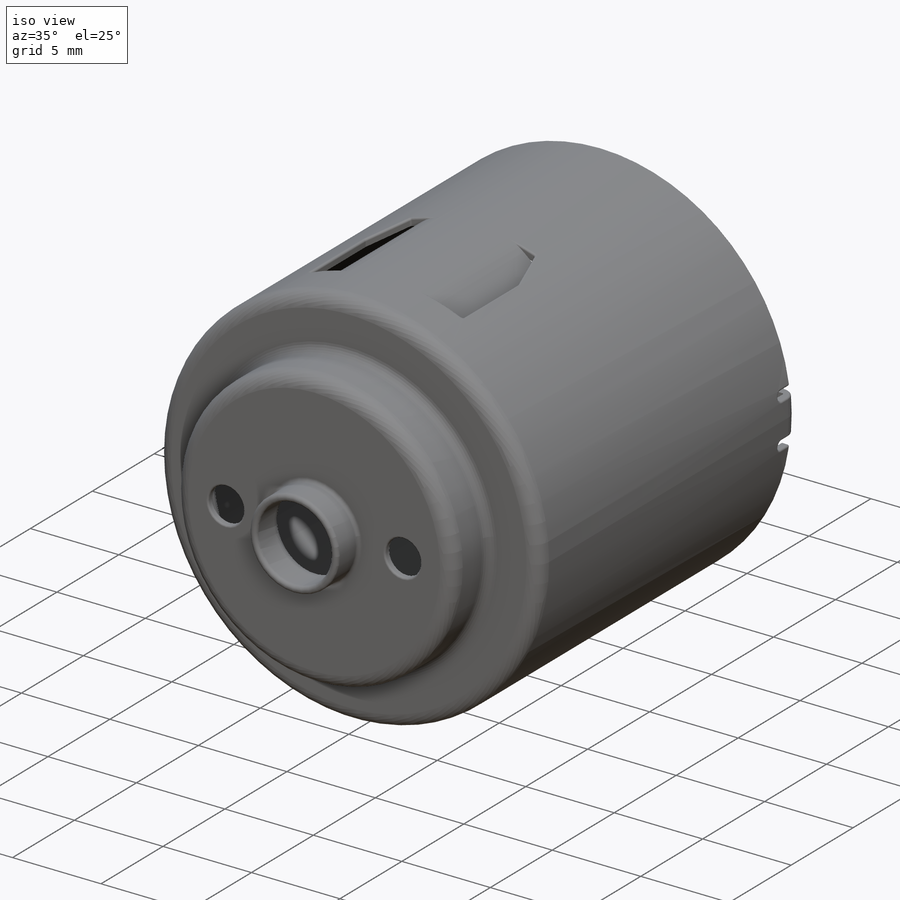
[diagram: iso view]
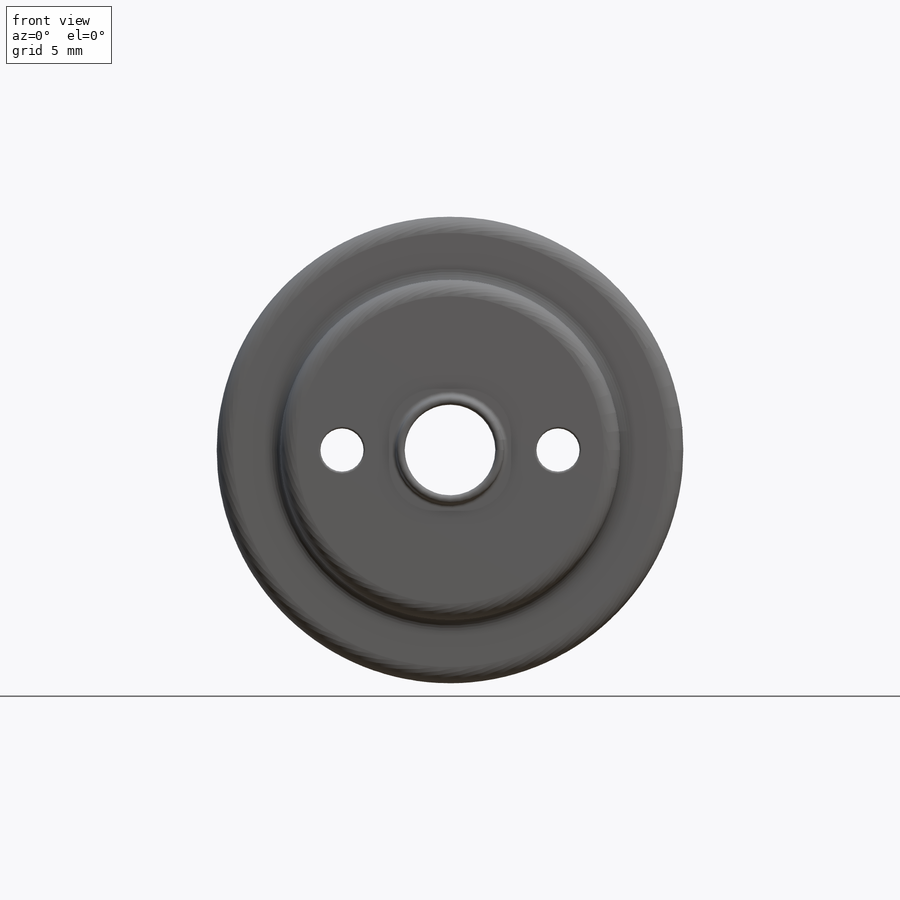
[diagram: front view]
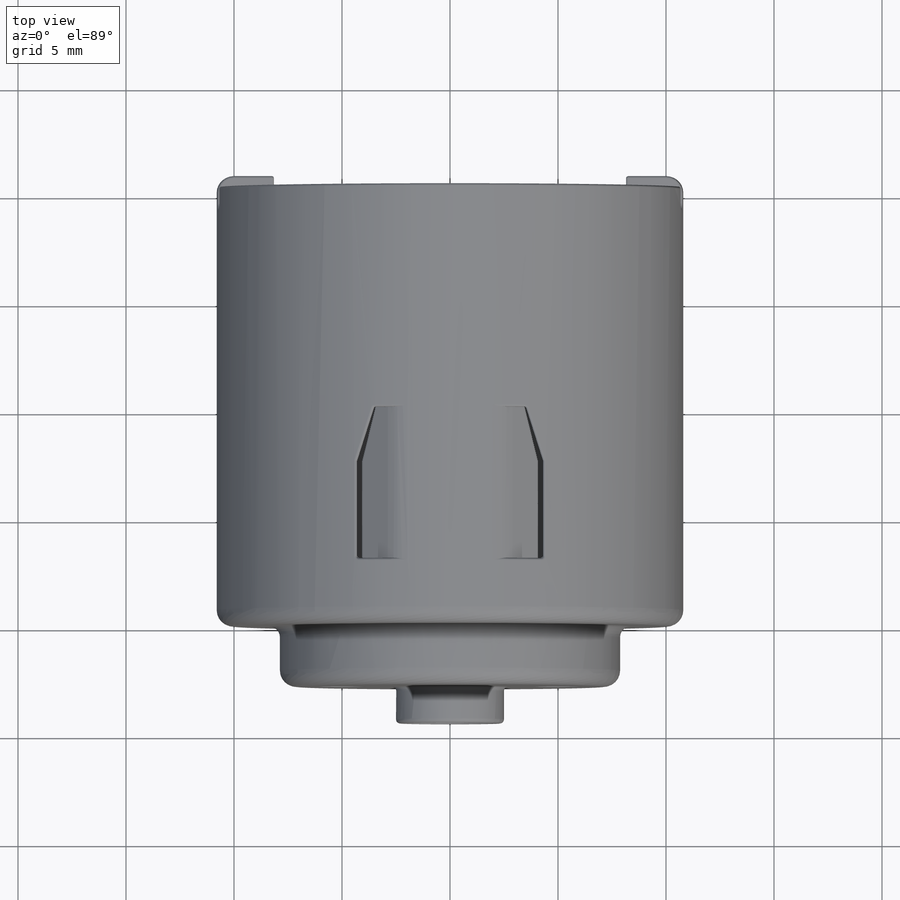
[diagram: top view]
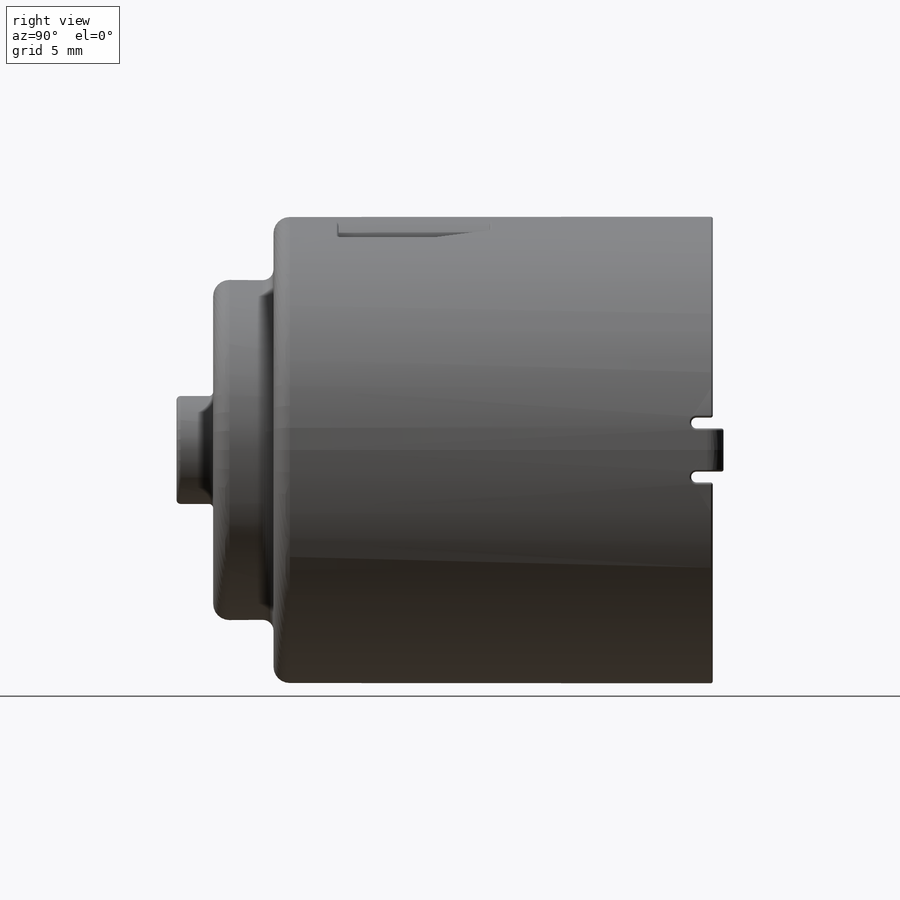
[diagram: right view]
SOLIDWORKS PART (.sldprt)
format: sldprt  version: not decoded by parser v0  size: 1,209,344 bytes
history: native  units: mm
features: fillet x14, sketch x11, extrude x7, plane x4, cut_extrude x4, mirror x4, material x1, shell x1 (+10 scaffold rows collapsed)
feature tree (56):
  scaffold x10  (default folders/planes/origin — collapsed)
  material  "AISI 1020"
  plane  "Frontal"
  plane  "Superior"
  plane  "Direito"
  sketch  "Sketch1"  dims[D1=21.6mm]
  extrude  "Extrude1"  Depth=20.33524mm
  sketch  "Sketch14"  dims[D1=15.748mm]
  extrude  "Extrude6"  Depth=23.12924mm
  sketch  "Sketch2"  dims[D1=5.0mm]
  extrude  "Extrude2"  Depth=1.7mm
  fillet  "Fillet1"  Radius=0.75mm
  fillet  "Fillet17"  Radius=0.5mm
  fillet  "Fillet18"  Radius=0.2mm
  shell  "Shell1"  Thickness=0.4mm
  sketch  "Sketch4"  dims[D1=2.0mm D2=10.0mm]
  cut_extrude  "Cut-Extrude2"  [1 undecoded]
  mirror  "Mirror3"
  sketch  "Sketch7"  dims[D1=3.0mm]
  cut_extrude  "Cut-Extrude5"  Depth=1mm
  sketch  "Sketch9"  dims[D2=2.0mm D1=0.0mm]
  extrude  "Extrude3"  [1 undecoded]
  sketch  "Sketch10"  dims[D1=2.6mm]
  extrude  "Extrude4"  Depth=0.5mm
  fillet  "Fillet7"  Radius=0.75mm
  fillet  "Fillet8"  Radius=0.1mm
  fillet  "Fillet10"  Radius=0.25mm
  fillet  "Fillet9"  Radius=0.1mm
  fillet  "Fillet21"  Radius=0.1mm
  mirror  "Mirror4"
  fillet  "Fillet6"  Radius=0.1mm
  sketch  "Sketch11"  dims[c1.D1=7.0mm c1.D2=1.8mm c1.D3=1.0mm c1.D4=4.5mm c1.D5=5.0mm c1.D6=3.0mm c1.D7=~6.288961mm c2.D7=~17.744672deg c2.D8=2.5mm]
  cut_extrude  "Cut-Extrude6"  [1 undecoded]
  mirror  "Mirror5"
  plane  "Plane2"  Offset=0.2mm
  sketch  "Sketch12"  dims[c1.D1=2.1mm c1.D2=~0.505377mm c2.D2=80.0deg c3.D2=~0.505377mm c4.D2=50.0deg]
  extrude  "Extrude5"  [1 undecoded]
  sketch  "Sketch13"  dims[c1.D1=2.5mm c1.D2=~3.049995mm c2.D2=~10.388332deg c3.D2=~3.049995mm c4.D2=17.8deg]
  cut_extrude  "Cut-Extrude7"  [1 undecoded]
  mirror  "Mirror9"
  fillet  "Fillet11"  Radius=0.1mm
  fillet  "Fillet16"  Radius=0.1mm
  fillet  "Fillet12"  Radius=2mm
  fillet  "Fillet19"  [1 undecoded]
  fillet  "Fillet20"  Radius=0.1mm
  sketch  "Sketch15"
  extrude  "Extrude7"  Depth=0.01mm
decode coverage: 30 of 41 modeling features carry decoded parameters
note: ~ marks probable driven/reference dimensions
note: 6 parameter values undecoded
summary: no parameter record found for 6 features
note: suppression state not decoded; provenance and decode notes live in map.json
